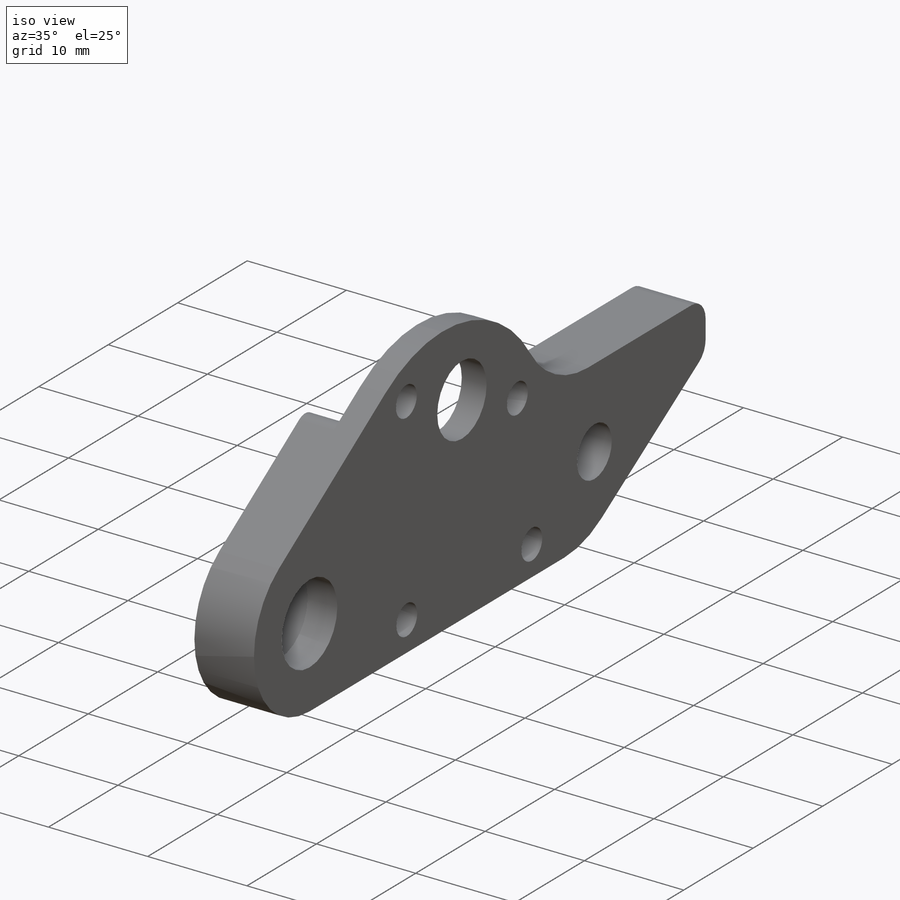
[diagram: iso view]
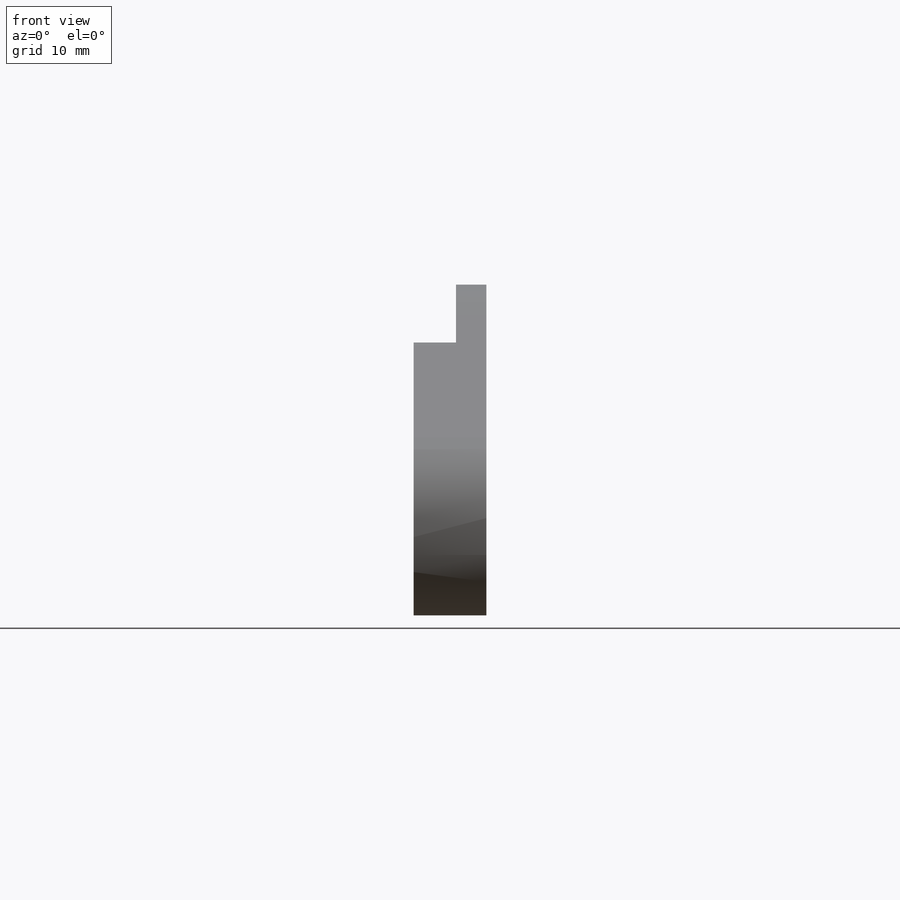
[diagram: front view]
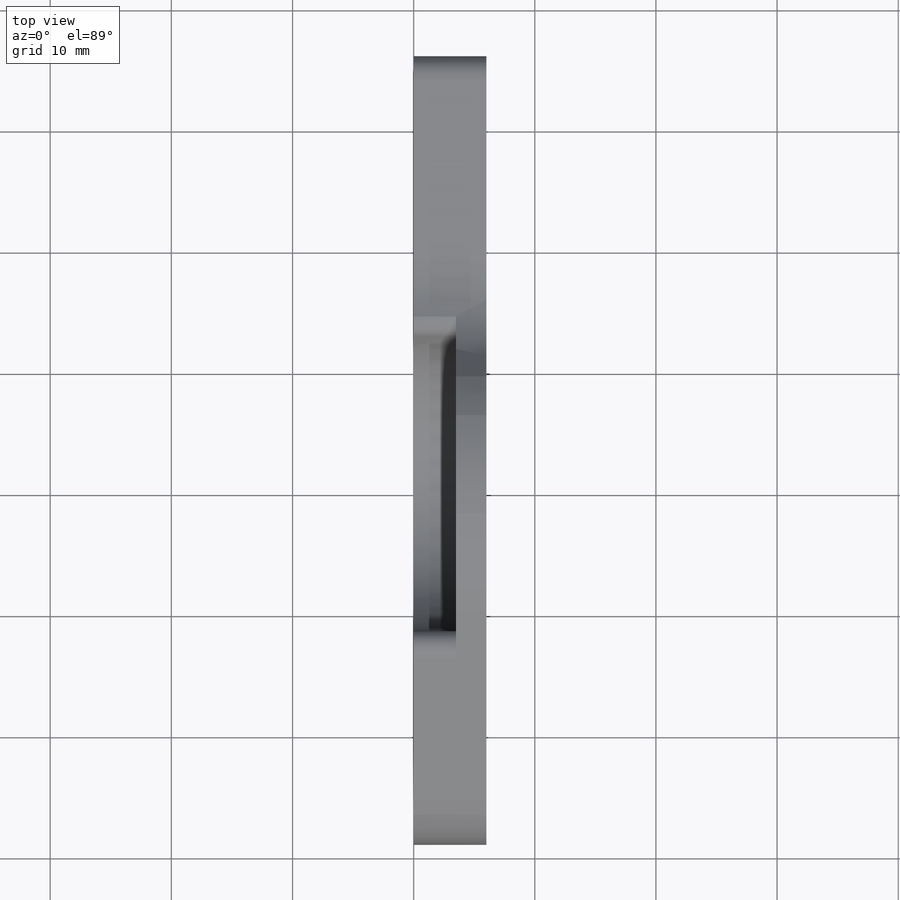
[diagram: top view]
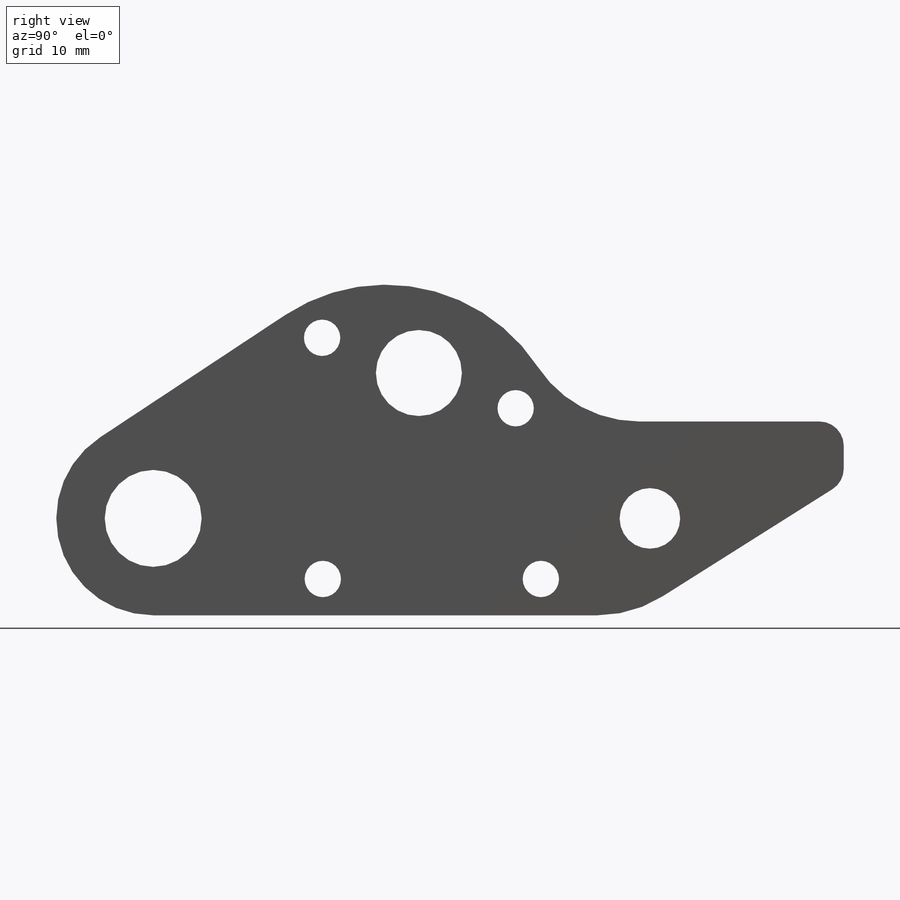
[diagram: right view]
SOLIDWORKS PART (.sldprt)
format: sldprt  version: not decoded by parser v0  size: 393,728 bytes
history: native  units: mm
features: sketch x6, cut_extrude x5, fillet x3, material x1, extrude x1 (+11 scaffold rows collapsed)
feature tree (27):
  scaffold x11  (default folders/planes/origin — collapsed)
  material  "1060 Alloy"
  sketch  "Sketch27"  dims[c1.D9=6.0mm c1.D10=5.0mm c1.D11=12.0mm c1.D12=8.0mm c1.D13=8.0mm c1.D14=15.0mm c1.D15=10.0mm c1.D6=25.0mm c2.D14=25.0mm c2.D17=7.1mm c2.D11=15.0mm c2.D16=3.0mm c2.D19=6.5mm c3.D14=20.0mm c3.D20=10.0mm c3.D9=12.0mm c3.D1=60.0mm c3.D2=58.0mm c3.D3=42.0mm c3.D4=9.0mm c3.D5=25.0mm c3.D6=37.0mm c3.D7=8.0mm c3.D8=20.0mm c3.D16=3.0mm c3.D17=14.0mm c3.D15=17.0mm c4.D5=30.0mm c4.D6=~20.239765mm c4.D8=26.0mm c4.D11=20.0mm c4.D14=1.0mm c4.D15=24.0mm c5.D8=12.0mm c5.D14=11.0mm c5.D16=8.0mm c5.D18=26.0mm c5.D15=25.0mm c6.D18=~1.763239mm c6.D11=28.0mm c6.D14=20.0mm c6.D5=42.0mm c6.D7=50.0mm c7.D14=8.0mm c7.D18=8.5mm c7.D21=~16.584357mm c8.D21=20.0deg c8.D14=5.0mm c8.D22=16.0mm c8.D23=8.0mm]
  extrude  "Boss-Extrude1"  Depth=6mm
  sketch  "Sketch47"  dims[D1=9.98mm]
  cut_extrude  "Cut-Extrude8"  Depth=3mm
  sketch  "Sketch48"  dims[D1=12.55mm D2=1.5mm D3=1.5mm]
  cut_extrude  "Cut-Extrude10"  Depth=3.5mm
  sketch  "Sketch49"  dims[D1=6.0mm D2=24.0mm D3=6.0mm]
  cut_extrude  "Cut-Extrude11"  Depth=3mm
  sketch  "Sketch50"  dims[D1=3.0mm D2=1.0mm D3=1.0mm D4=1.0mm]
  cut_extrude  "Cut-Extrude12"  [1 undecoded]
  fillet  "Fillet1"  Radius=3mm
  sketch  "Sketch51"  dims[D1=3.0mm D2=3.0mm D3=3.0mm D4=3.0mm D5=3.0mm]
  cut_extrude  "Cut-Extrude13"  [1 undecoded]
  fillet  "Fillet2"  Radius=10mm
  fillet  "Fillet3"  Radius=2mm
decode coverage: 13 of 15 modeling features carry decoded parameters
note: ~ marks probable driven/reference dimensions
note: 2 parameter values undecoded
note: suppression state not decoded; provenance and decode notes live in map.json
